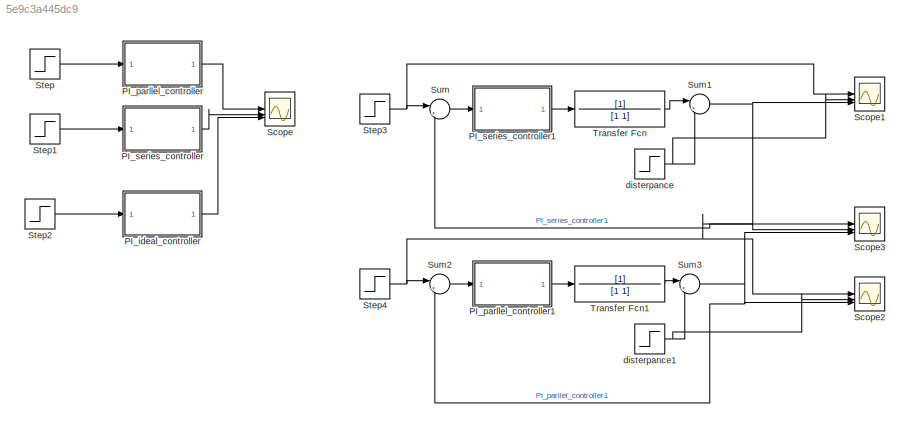
MODEL slx_5e9c3a445dc9
KIND model
CONFIG AbsTol = auto
CONFIG EnableMultiTasking = off
CONFIG FixedStep = auto
CONFIG MaxStep = auto
CONFIG MinStep = auto
CONFIG RelTol = 1e-3
CONFIG SampleTimeConstraint = Unconstrained
CONFIG SolverName = VariableStepAuto
CONFIG StartTime = 0.0
CONFIG StopTime = 10.0
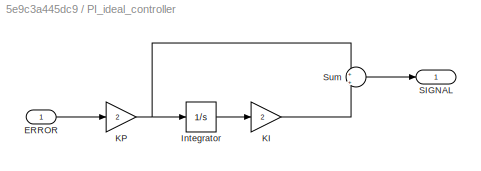
BLOCK [SubSystem] PI_ideal_controller
BLOCK [Inport] PI_ideal_controller/ERROR
BLOCK [Integrator] PI_ideal_controller/Integrator
BLOCK [Gain] PI_ideal_controller/KI
  Gain = 2
BLOCK [Gain] PI_ideal_controller/KP
  Gain = 2
BLOCK [Outport] PI_ideal_controller/SIGNAL
BLOCK [Sum] PI_ideal_controller/Sum
  Inputs = +|+
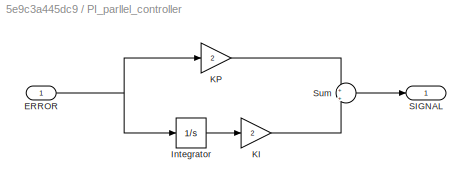
BLOCK [SubSystem] PI_parllel_controller
BLOCK [Inport] PI_parllel_controller/ERROR
BLOCK [Integrator] PI_parllel_controller/Integrator
BLOCK [Gain] PI_parllel_controller/KI
  Gain = 2
BLOCK [Gain] PI_parllel_controller/KP
  Gain = 2
BLOCK [Outport] PI_parllel_controller/SIGNAL
BLOCK [Sum] PI_parllel_controller/Sum
  Inputs = +|+
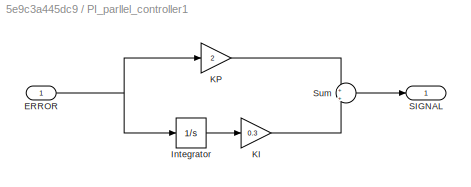
BLOCK [SubSystem] PI_parllel_controller1
BLOCK [Inport] PI_parllel_controller1/ERROR
BLOCK [Integrator] PI_parllel_controller1/Integrator
BLOCK [Gain] PI_parllel_controller1/KI
  Gain = 0.3
BLOCK [Gain] PI_parllel_controller1/KP
  Gain = 2
BLOCK [Outport] PI_parllel_controller1/SIGNAL
BLOCK [Sum] PI_parllel_controller1/Sum
  Inputs = +|+
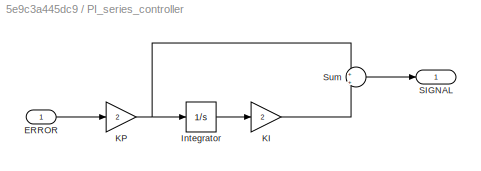
BLOCK [SubSystem] PI_series_controller
BLOCK [Inport] PI_series_controller/ERROR
BLOCK [Integrator] PI_series_controller/Integrator
BLOCK [Gain] PI_series_controller/KI
  Gain = 2
BLOCK [Gain] PI_series_controller/KP
  Gain = 2
BLOCK [Outport] PI_series_controller/SIGNAL
BLOCK [Sum] PI_series_controller/Sum
  Inputs = +|+
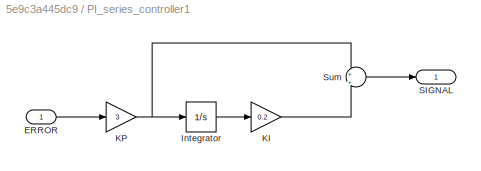
BLOCK [SubSystem] PI_series_controller1
BLOCK [Inport] PI_series_controller1/ERROR
BLOCK [Integrator] PI_series_controller1/Integrator
BLOCK [Gain] PI_series_controller1/KI
  Gain = 0.2
BLOCK [Gain] PI_series_controller1/KP
  Gain = 3
BLOCK [Outport] PI_series_controller1/SIGNAL
BLOCK [Sum] PI_series_controller1/Sum
  Inputs = +|+
BLOCK [Scope] Scope
  Floating = off
  NumInputPorts = 3
  ScopeSpecificationString = Simulink.scopes.TimeScopeBlockCfg('CurrentConfiguration', extmgr.ConfigurationSet(extmgr.Configuration('Core','General UI',true),extmgr.Configuration('Core','Source UI',true),extmgr.Configuration('Sources','WiredSimulink',true),extmgr.Configuration('Visuals','Time Domain',true,'SerializedDisplays',{struct('MinYLimReal','-4.75','MaxYLimReal','42.75','YLabelReal','','MinYLimMag','0.00000','MaxYLimMa...<+1499ch>
BLOCK [Scope] Scope1
  Floating = off
  NumInputPorts = 3
  ScopeSpecificationString = Simulink.scopes.TimeScopeBlockCfg('CurrentConfiguration', extmgr.ConfigurationSet(extmgr.Configuration('Core','General UI',true),extmgr.Configuration('Core','Source UI',true),extmgr.Configuration('Sources','WiredSimulink',true,'DataLoggingVariableName','ScopeData1'),extmgr.Configuration('Visuals','Time Domain',true,'SerializedDisplays',{struct('MinYLimReal','-0.125','MaxYLimReal','1.125','YLabelRe...<+1430ch>
BLOCK [Scope] Scope2
  Floating = off
  NumInputPorts = 3
  ScopeSpecificationString = Simulink.scopes.TimeScopeBlockCfg('CurrentConfiguration', extmgr.ConfigurationSet(extmgr.Configuration('Core','General UI',true),extmgr.Configuration('Core','Source UI',true),extmgr.Configuration('Sources','WiredSimulink',true,'DataLoggingVariableName','ScopeData2'),extmgr.Configuration('Visuals','Time Domain',true,'SerializedDisplays',{struct('MinYLimReal','-0.125','MaxYLimReal','1.125','YLabelRe...<+1405ch>
BLOCK [Scope] Scope3
  Floating = off
  NumInputPorts = 3
  ScopeSpecificationString = Simulink.scopes.TimeScopeBlockCfg('CurrentConfiguration', extmgr.ConfigurationSet(extmgr.Configuration('Core','General UI',true),extmgr.Configuration('Core','Source UI',true),extmgr.Configuration('Sources','WiredSimulink',true,'DataLoggingVariableName','ScopeData3'),extmgr.Configuration('Visuals','Time Domain',true,'SerializedDisplays',{struct('MinYLimReal','-0.125','MaxYLimReal','1.125','YLabelRe...<+1424ch>
BLOCK [Step] Step
  SampleTime = 0
BLOCK [Step] Step1
  SampleTime = 0
BLOCK [Step] Step2
  SampleTime = 0
BLOCK [Step] Step3
  SampleTime = 0
BLOCK [Step] Step4
  SampleTime = 0
BLOCK [Sum] Sum
  Inputs = |+-
BLOCK [Sum] Sum1
  Inputs = |+-
BLOCK [Sum] Sum2
  Inputs = |+-
BLOCK [Sum] Sum3
  Inputs = |+-
BLOCK [TransferFcn] Transfer Fcn
BLOCK [TransferFcn] Transfer Fcn1
BLOCK [Step] disterpance
  After = 0.4
  SampleTime = 0
  Time = 4
BLOCK [Step] disterpance1
  After = 0.4
  SampleTime = 0
  Time = 4
LINE PI_ideal_controller/ERROR:1 -> PI_ideal_controller/KP:1
LINE PI_ideal_controller/Integrator:1 -> PI_ideal_controller/KI:1
LINE PI_ideal_controller/KI:1 -> PI_ideal_controller/Sum:2
NET PI_ideal_controller/KP:1 -> PI_ideal_controller/Integrator:1, PI_ideal_controller/Sum:1
LINE PI_ideal_controller/Sum:1 -> PI_ideal_controller/SIGNAL:1
LINE PI_ideal_controller:1 -> Scope:3
NET PI_parllel_controller/ERROR:1 -> PI_parllel_controller/Integrator:1, PI_parllel_controller/KP:1
LINE PI_parllel_controller/Integrator:1 -> PI_parllel_controller/KI:1
LINE PI_parllel_controller/KI:1 -> PI_parllel_controller/Sum:2
LINE PI_parllel_controller/KP:1 -> PI_parllel_controller/Sum:1
LINE PI_parllel_controller/Sum:1 -> PI_parllel_controller/SIGNAL:1
NET PI_parllel_controller1/ERROR:1 -> PI_parllel_controller1/Integrator:1, PI_parllel_controller1/KP:1
LINE PI_parllel_controller1/Integrator:1 -> PI_parllel_controller1/KI:1
LINE PI_parllel_controller1/KI:1 -> PI_parllel_controller1/Sum:2
LINE PI_parllel_controller1/KP:1 -> PI_parllel_controller1/Sum:1
LINE PI_parllel_controller1/Sum:1 -> PI_parllel_controller1/SIGNAL:1
LINE PI_parllel_controller1:1 -> Transfer Fcn1:1
LINE PI_parllel_controller:1 -> Scope:1
LINE PI_series_controller/ERROR:1 -> PI_series_controller/KP:1
LINE PI_series_controller/Integrator:1 -> PI_series_controller/KI:1
LINE PI_series_controller/KI:1 -> PI_series_controller/Sum:2
NET PI_series_controller/KP:1 -> PI_series_controller/Integrator:1, PI_series_controller/Sum:1
LINE PI_series_controller/Sum:1 -> PI_series_controller/SIGNAL:1
LINE PI_series_controller1/ERROR:1 -> PI_series_controller1/KP:1
LINE PI_series_controller1/Integrator:1 -> PI_series_controller1/KI:1
LINE PI_series_controller1/KI:1 -> PI_series_controller1/Sum:2
NET PI_series_controller1/KP:1 -> PI_series_controller1/Integrator:1, PI_series_controller1/Sum:1
LINE PI_series_controller1/Sum:1 -> PI_series_controller1/SIGNAL:1
LINE PI_series_controller1:1 -> Transfer Fcn:1
LINE PI_series_controller:1 -> Scope:2
LINE Step1:1 -> PI_series_controller:1
LINE Step2:1 -> PI_ideal_controller:1
NET Step3:1 -> Scope1:1, Sum:1
NET Step4:1 -> Scope2:1, Scope3:1, Sum2:1
LINE Step:1 -> PI_parllel_controller:1
NET Sum1:1 -> Scope1:3, Scope3:2, Sum:2
LINE Sum2:1 -> PI_parllel_controller1:1
NET Sum3:1 -> Scope2:3, Scope3:3, Sum2:2
LINE Sum:1 -> PI_series_controller1:1
LINE Transfer Fcn1:1 -> Sum3:1
LINE Transfer Fcn:1 -> Sum1:1
NET disterpance1:1 -> Scope2:2, Sum3:2
NET disterpance:1 -> Scope1:2, Sum1:2
note: NET lines group one-source signal fan-out (src -> all destinations, sorted); 1:1 wires keep LINE
